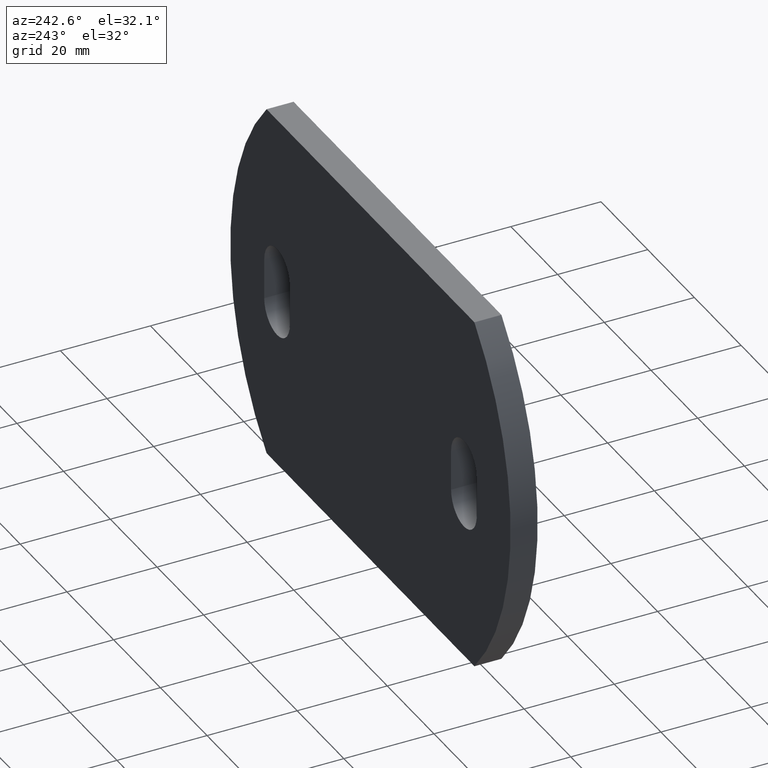
[diagram: clean part render]
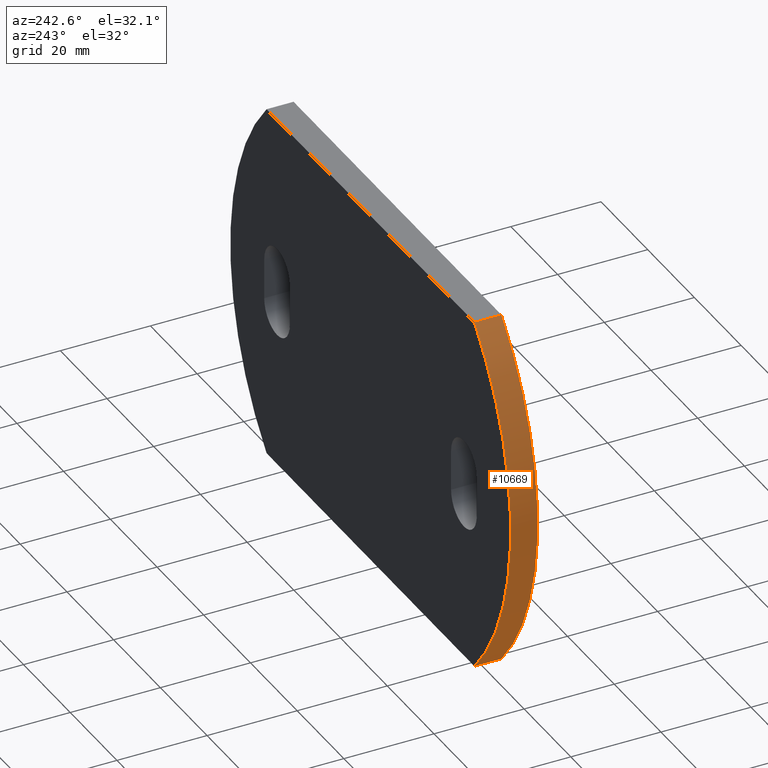
[diagram: same view with one face highlighted and labeled with its STEP entity id]
A machine part, auxiliary view. The second image highlights one B-rep face of the part: STEP entity #10669.
In plain terms, the highlighted cylindrical surface (partial cylindrical patch) has radius 59.3629 mm, axis along (-0, -1, -0).
Its self-contained STEP definition (entity closure, byte-faithful):
#509 = AXIS2_PLACEMENT_3D ( 'NONE', #6932, #5253, #7800 ) ;
#1097 = VECTOR ( 'NONE', #10356, 1000.000000000000000 ) ;
#1150 = DIRECTION ( 'NONE',  ( -0.000000000000000000, -1.000000000000000000, -0.000000000000000000 ) ) ;
#2375 = LINE ( 'NONE', #5803, #5440 ) ;
#2481 = DIRECTION ( 'NONE',  ( 0.000000000000000000, 0.000000000000000000, 1.000000000000000000 ) ) ;
#2504 = CIRCLE ( 'NONE', #2611, 59.36290322580647683 ) ;
#2611 = AXIS2_PLACEMENT_3D ( 'NONE', #10955, #9352, #2481 ) ;
#2706 = CARTESIAN_POINT ( 'NONE',  ( -0.6370967741935185114, 3.000000000000000000, 0.000000000000000000 ) ) ;
#2740 = CARTESIAN_POINT ( 'NONE',  ( -44.50000000000000711, 3.000000000000000000, -40.00000000000000000 ) ) ;
#2921 = CARTESIAN_POINT ( 'NONE',  ( -44.50000000000000711, -3.000000000000000000, -40.00000000000000000 ) ) ;
#3400 = LINE ( 'NONE', #6841, #1097 ) ;
#3749 = ORIENTED_EDGE ( 'NONE', *, *, #8872, .F. ) ;
#4407 = EDGE_CURVE ( 'NONE', #6410, #5348, #7188, .T. ) ;
#4567 = DIRECTION ( 'NONE',  ( 0.000000000000000000, 0.000000000000000000, -1.000000000000000000 ) ) ;
#4568 = CYLINDRICAL_SURFACE ( 'NONE', #8087, 59.36290322580647683 ) ;
#5097 = DIRECTION ( 'NONE',  ( -0.000000000000000000, -1.000000000000000000, -0.000000000000000000 ) ) ;
#5253 = DIRECTION ( 'NONE',  ( 0.000000000000000000, 1.000000000000000000, 0.000000000000000000 ) ) ;
#5348 = VERTEX_POINT ( 'NONE', #6297 ) ;
#5440 = VECTOR ( 'NONE', #5097, 1000.000000000000000 ) ;
#5518 = EDGE_CURVE ( 'NONE', #6410, #10848, #2375, .T. ) ;
#5803 = CARTESIAN_POINT ( 'NONE',  ( -44.50000000000000711, 3.000000000000000000, -40.00000000000000000 ) ) ;
#5910 = ORIENTED_EDGE ( 'NONE', *, *, #4407, .F. ) ;
#6214 = ORIENTED_EDGE ( 'NONE', *, *, #8701, .T. ) ;
#6297 = CARTESIAN_POINT ( 'NONE',  ( -44.50000000000000711, 3.000000000000000000, 40.00000000000000000 ) ) ;
#6410 = VERTEX_POINT ( 'NONE', #2740 ) ;
#6841 = CARTESIAN_POINT ( 'NONE',  ( -44.50000000000000711, 3.000000000000000000, 40.00000000000000000 ) ) ;
#6932 = CARTESIAN_POINT ( 'NONE',  ( -0.6370967741935185114, 3.000000000000000000, 0.000000000000000000 ) ) ;
#7188 = CIRCLE ( 'NONE', #509, 59.36290322580647683 ) ;
#7800 = DIRECTION ( 'NONE',  ( 0.000000000000000000, 0.000000000000000000, 1.000000000000000000 ) ) ;
#8087 = AXIS2_PLACEMENT_3D ( 'NONE', #2706, #1150, #4567 ) ;
#8537 = FACE_OUTER_BOUND ( 'NONE', #9513, .T. ) ;
#8701 = EDGE_CURVE ( 'NONE', #10848, #9328, #2504, .T. ) ;
#8872 = EDGE_CURVE ( 'NONE', #5348, #9328, #3400, .T. ) ;
#8913 = ORIENTED_EDGE ( 'NONE', *, *, #5518, .T. ) ;
#9328 = VERTEX_POINT ( 'NONE', #9705 ) ;
#9352 = DIRECTION ( 'NONE',  ( 0.000000000000000000, 1.000000000000000000, 0.000000000000000000 ) ) ;
#9513 = EDGE_LOOP ( 'NONE', ( #6214, #3749, #5910, #8913 ) ) ;
#9705 = CARTESIAN_POINT ( 'NONE',  ( -44.50000000000000711, -3.000000000000000000, 40.00000000000000000 ) ) ;
#10356 = DIRECTION ( 'NONE',  ( -0.000000000000000000, -1.000000000000000000, -0.000000000000000000 ) ) ;
#10669 = ADVANCED_FACE ( 'NONE', ( #8537 ), #4568, .T. ) ;
#10848 = VERTEX_POINT ( 'NONE', #2921 ) ;
#10955 = CARTESIAN_POINT ( 'NONE',  ( -0.6370967741935185114, -3.000000000000000000, 0.000000000000000000 ) ) ;